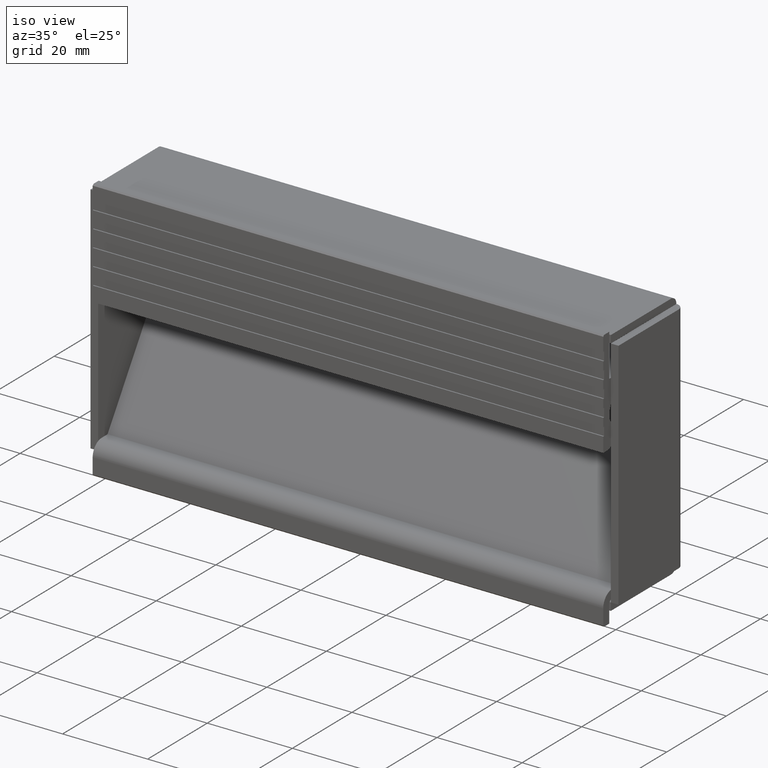
[diagram: clean part render]
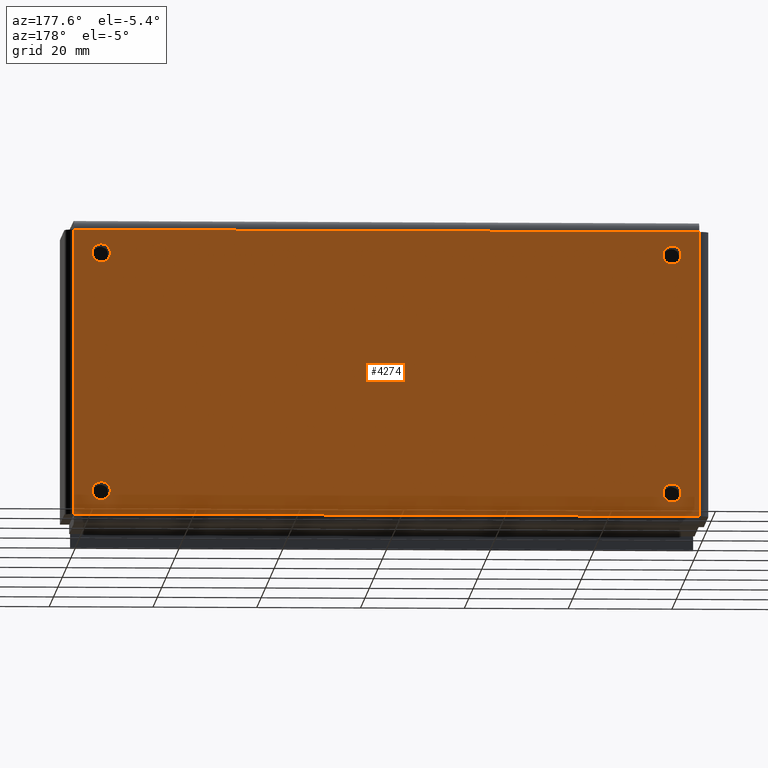
[diagram: tour spotlight — one face highlighted and labeled with its STEP entity id]
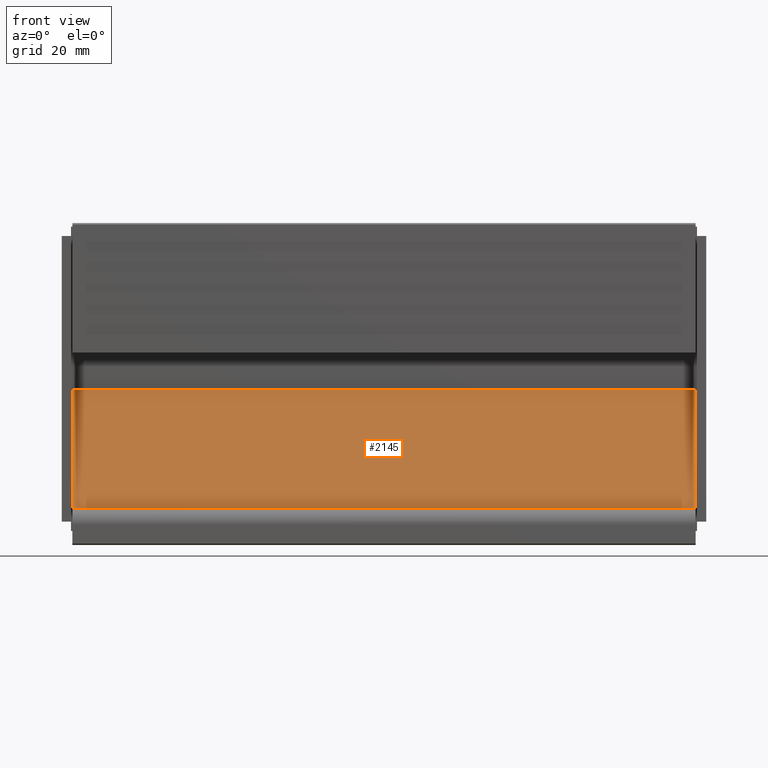
[diagram: tour spotlight — one face highlighted and labeled with its STEP entity id]
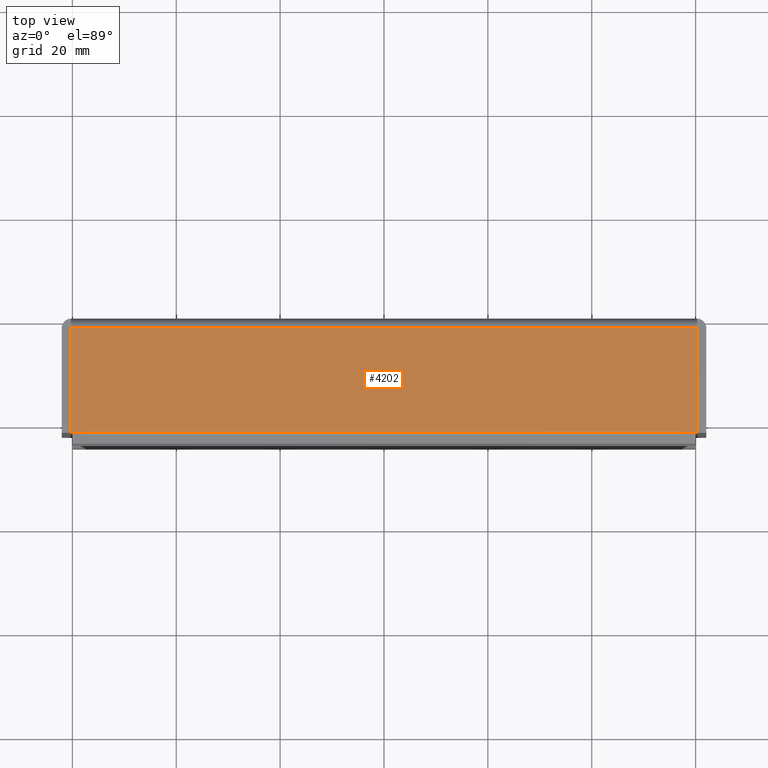
[diagram: tour spotlight — one face highlighted and labeled with its STEP entity id]
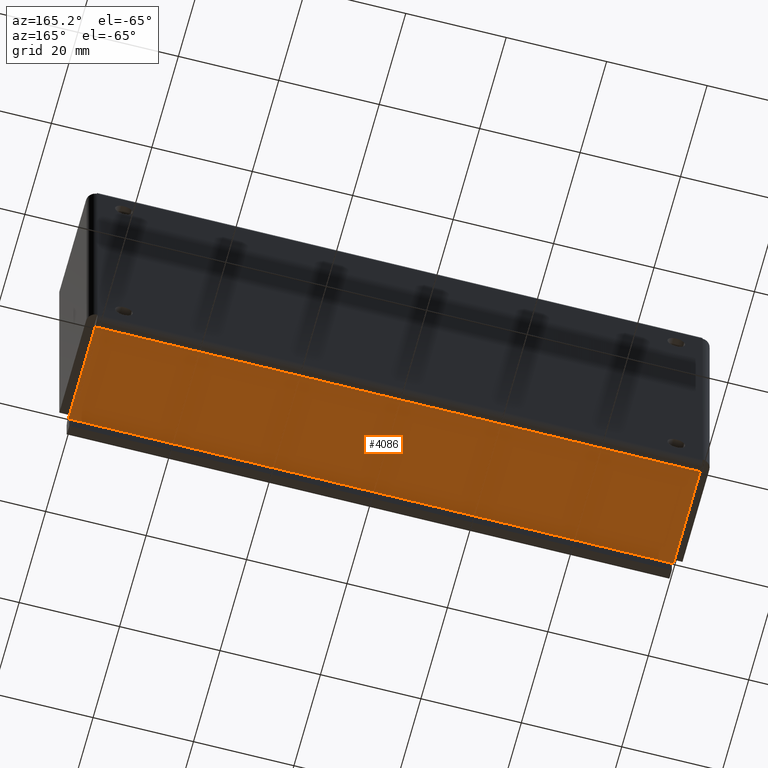
[diagram: tour spotlight — one face highlighted and labeled with its STEP entity id]
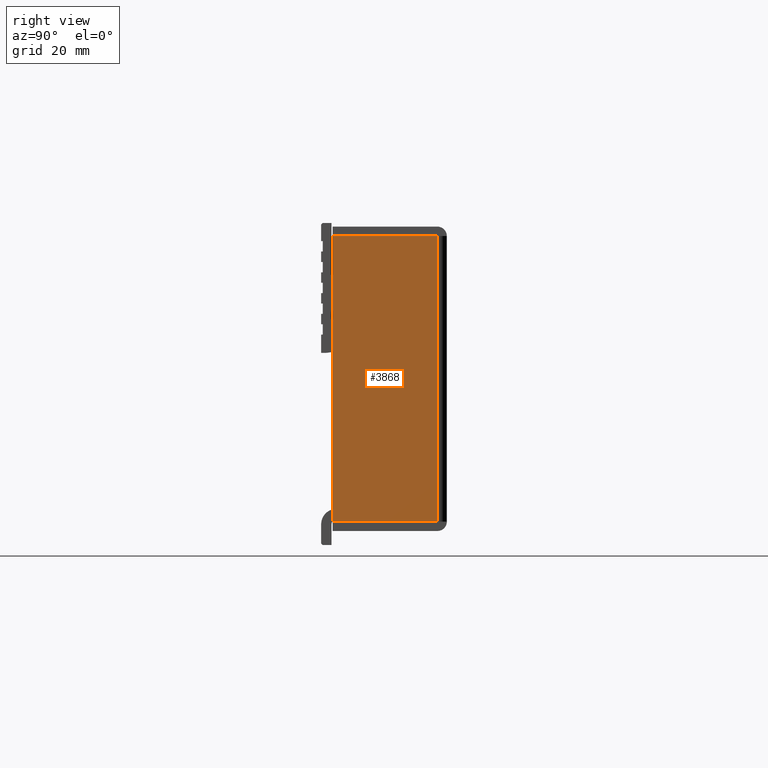
[diagram: tour spotlight — one face highlighted and labeled with its STEP entity id]
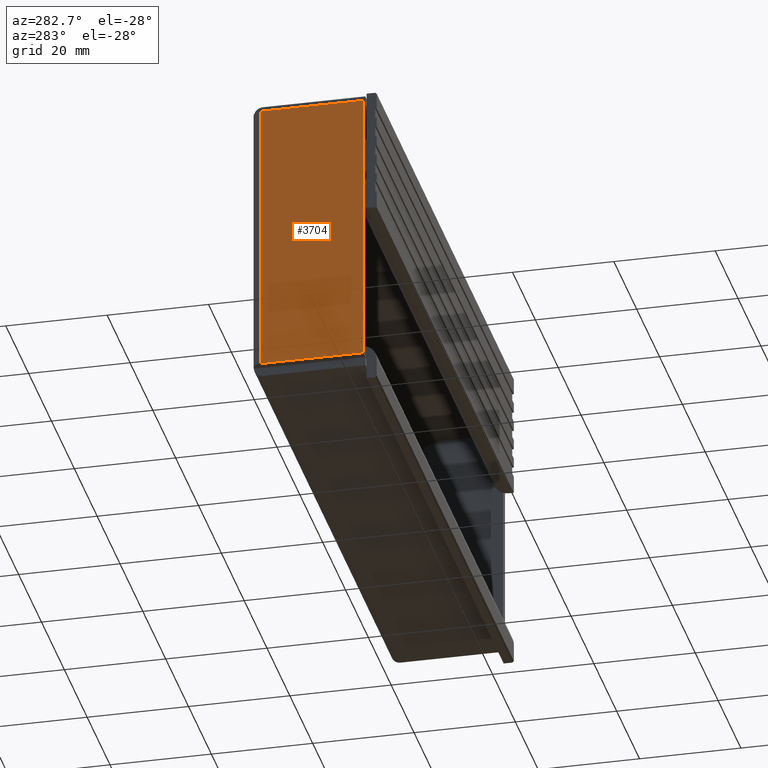
[diagram: tour spotlight — one face highlighted and labeled with its STEP entity id]
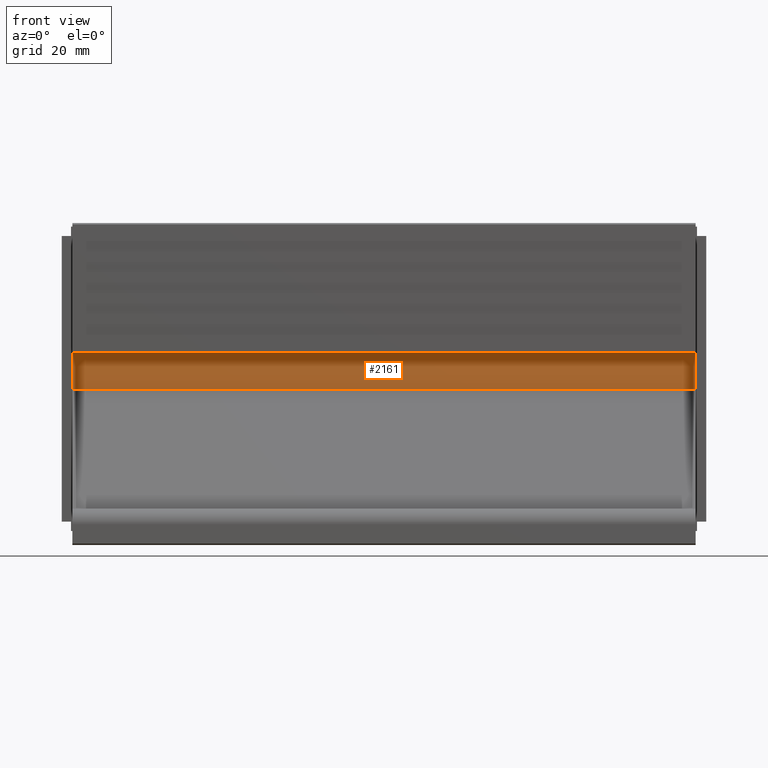
[diagram: tour spotlight — one face highlighted and labeled with its STEP entity id]
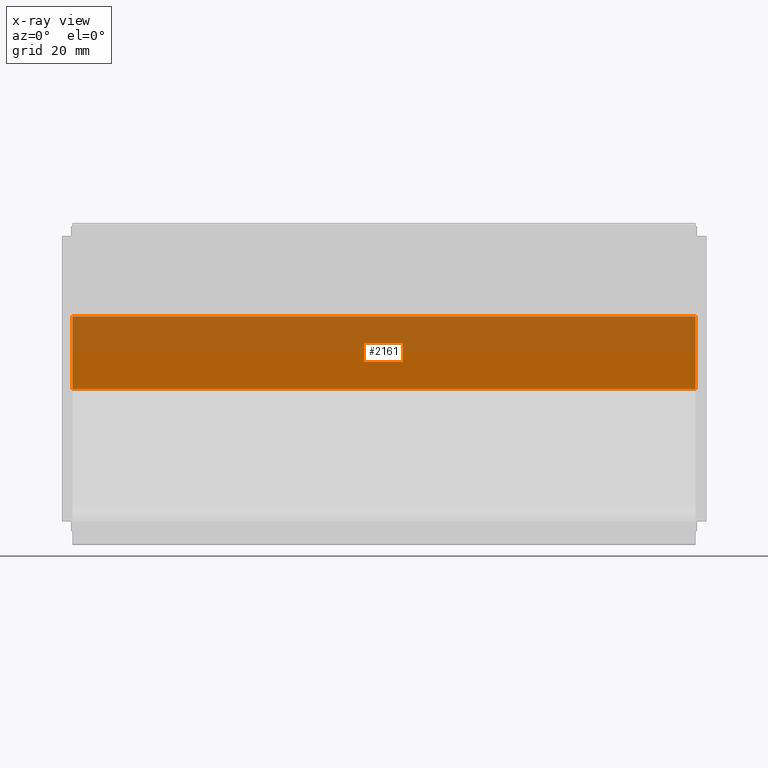
[diagram: x-ray of the same camera — body ghosted, this tour face saturated]
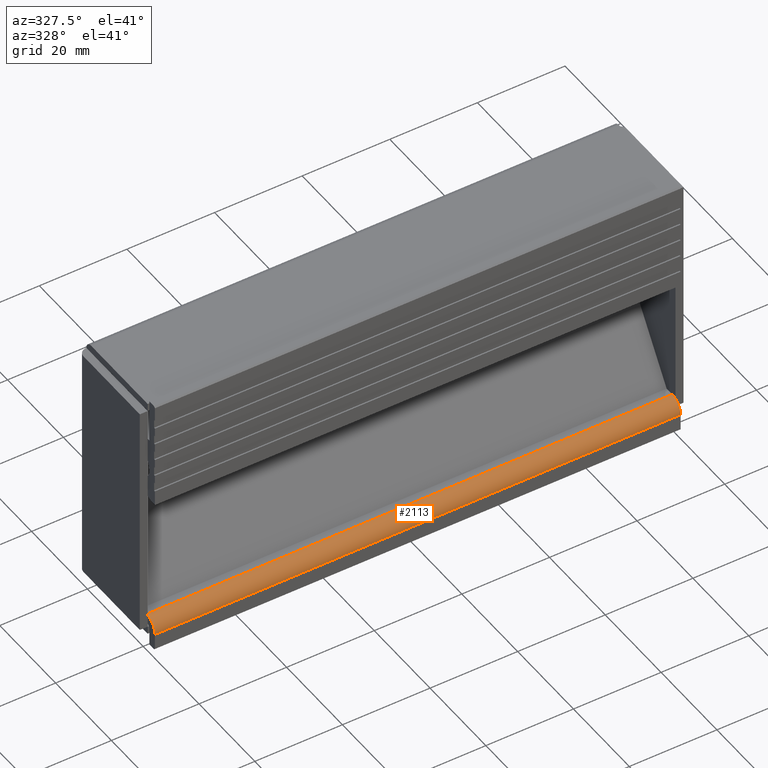
[diagram: tour spotlight — one face highlighted and labeled with its STEP entity id]
A machine part: a face-by-face anatomy tour. The part has 101 B-rep faces; the first image is the clean iso view, then the 8 largest visible faces are spotlighted one at a time (largest first), each with its STEP entity span.

Face 1 — auxiliary view, entity #4274. In plain terms, the highlighted face is a freeform B-spline surface patch.
Definition (entity closure, byte-faithful):
#2817=CARTESIAN_POINT('',(-55.0,0.0,24.750000000000000));
#2818=VERTEX_POINT('',#2817);
#2819=CARTESIAN_POINT('',(-56.744605333943852,1.387779E-017,23.137303418656231));
#2820=VERTEX_POINT('',#2819);
#2821=CARTESIAN_POINT('',(-55.0,0.0,24.750000000000000));
#2822=CARTESIAN_POINT('',(-56.617683358295153,0.0,24.750000000000004));
#2823=CARTESIAN_POINT('',(-56.744605333943845,1.387779E-017,23.137303418656227));
#2831=(BOUNDED_CURVE()B_SPLINE_CURVE(2,(#2821,#2822,#2823),.UNSPECIFIED.,.F.,.U.)B_SPLINE_CURVE_WITH_KNOTS((3,3),(0.0,0.236331300410209),.UNSPECIFIED.)CURVE()GEOMETRIC_REPRESENTATION_ITEM()RATIONAL_B_SPLINE_CURVE((1.0,0.723120658865939,0.969723355707354))REPRESENTATION_ITEM(''));
#2832=EDGE_CURVE('',#2818,#2820,#2831,.T.);
#2834=CARTESIAN_POINT('',(-53.255394666056162,1.387779E-017,22.862696581343780));
#2835=VERTEX_POINT('',#2834);
#2836=CARTESIAN_POINT('',(-53.255394666056148,1.387779E-017,22.862696581343776));
#2837=CARTESIAN_POINT('',(-53.250000000000000,0.0,22.931242311598830));
#2838=CARTESIAN_POINT('',(-53.250000000000000,0.0,23.0));
#2839=CARTESIAN_POINT('',(-53.249999999999993,0.0,24.750000000000000));
#2840=CARTESIAN_POINT('',(-55.0,0.0,24.750000000000000));
#2848=(BOUNDED_CURVE()B_SPLINE_CURVE(2,(#2836,#2837,#2838,#2839,#2840),.UNSPECIFIED.,.F.,.U.)B_SPLINE_CURVE_WITH_KNOTS((3,2,3),(0.736331300410209,0.750000000000000,1.0),.UNSPECIFIED.)CURVE()GEOMETRIC_REPRESENTATION_ITEM()RATIONAL_B_SPLINE_CURVE((0.969723355707355,0.983986122320608,1.0,0.707106781186547,1.0))REPRESENTATION_ITEM(''));
#2849=EDGE_CURVE('',#2835,#2818,#2848,.T.);
#2916=CARTESIAN_POINT('',(-55.0,0.0,21.250000000000000));
#2917=VERTEX_POINT('',#2916);
#2918=CARTESIAN_POINT('',(-56.744605333943845,1.387779E-017,23.137303418656227));
#2919=CARTESIAN_POINT('',(-56.750000000000000,0.0,23.068757688401167));
#2920=CARTESIAN_POINT('',(-56.750000000000000,0.0,23.0));
#2921=CARTESIAN_POINT('',(-56.750000000000000,0.0,21.249999999999996));
#2922=CARTESIAN_POINT('',(-55.0,0.0,21.250000000000000));
#2930=(BOUNDED_CURVE()B_SPLINE_CURVE(2,(#2918,#2919,#2920,#2921,#2922),.UNSPECIFIED.,.F.,.U.)B_SPLINE_CURVE_WITH_KNOTS((3,2,3),(0.236331300410209,0.250000000000000,0.500000000000000),.UNSPECIFIED.)CURVE()GEOMETRIC_REPRESENTATION_ITEM()RATIONAL_B_SPLINE_CURVE((0.969723355707354,0.983986122320608,1.0,0.707106781186547,1.0))REPRESENTATION_ITEM(''));
#2931=EDGE_CURVE('',#2820,#2917,#2930,.T.);
#2965=CARTESIAN_POINT('',(-55.0,0.0,21.250000000000000));
#2966=CARTESIAN_POINT('',(-53.382316641704861,0.0,21.249999999999993));
#2967=CARTESIAN_POINT('',(-53.255394666056155,1.387779E-017,22.862696581343776));
#2975=(BOUNDED_CURVE()B_SPLINE_CURVE(2,(#2965,#2966,#2967),.UNSPECIFIED.,.F.,.U.)B_SPLINE_CURVE_WITH_KNOTS((3,3),(0.500000000000000,0.736331300410209),.UNSPECIFIED.)CURVE()GEOMETRIC_REPRESENTATION_ITEM()RATIONAL_B_SPLINE_CURVE((1.0,0.723120658865940,0.969723355707353))REPRESENTATION_ITEM(''));
#2976=EDGE_CURVE('',#2917,#2835,#2975,.T.);
#2999=CARTESIAN_POINT('',(55.0,0.0,24.750000000000000));
#3000=VERTEX_POINT('',#2999);
#3001=CARTESIAN_POINT('',(53.255394666056162,1.387779E-017,23.137303418656231));
#3002=VERTEX_POINT('',#3001);
#3003=CARTESIAN_POINT('',(55.0,0.0,24.750000000000000));
#3004=CARTESIAN_POINT('',(53.382316641704847,0.0,24.750000000000004));
#3005=CARTESIAN_POINT('',(53.255394666056155,1.387779E-017,23.137303418656227));
#3013=(BOUNDED_CURVE()B_SPLINE_CURVE(2,(#3003,#3004,#3005),.UNSPECIFIED.,.F.,.U.)B_SPLINE_CURVE_WITH_KNOTS((3,3),(0.0,0.236331300410209),.UNSPECIFIED.)CURVE()GEOMETRIC_REPRESENTATION_ITEM()RATIONAL_B_SPLINE_CURVE((1.0,0.723120658865939,0.969723355707354))REPRESENTATION_ITEM(''));
#3014=EDGE_CURVE('',#3000,#3002,#3013,.T.);
#3016=CARTESIAN_POINT('',(56.744605333943852,1.387779E-017,22.862696581343780));
#3017=VERTEX_POINT('',#3016);
#3018=CARTESIAN_POINT('',(56.744605333943845,1.387779E-017,22.862696581343780));
#3019=CARTESIAN_POINT('',(56.750000000000000,0.0,22.931242311598830));
#3020=CARTESIAN_POINT('',(56.750000000000000,0.0,23.0));
#3021=CARTESIAN_POINT('',(56.750000000000000,0.0,24.750000000000000));
#3022=CARTESIAN_POINT('',(55.0,0.0,24.750000000000000));
#3030=(BOUNDED_CURVE()B_SPLINE_CURVE(2,(#3018,#3019,#3020,#3021,#3022),.UNSPECIFIED.,.F.,.U.)B_SPLINE_CURVE_WITH_KNOTS((3,2,3),(0.736331300410209,0.750000000000000,1.0),.UNSPECIFIED.)CURVE()GEOMETRIC_REPRESENTATION_ITEM()RATIONAL_B_SPLINE_CURVE((0.969723355707354,0.983986122320608,1.0,0.707106781186547,1.0))REPRESENTATION_ITEM(''));
#3031=EDGE_CURVE('',#3017,#3000,#3030,.T.);
#3098=CARTESIAN_POINT('',(55.0,0.0,21.250000000000000));
#3099=VERTEX_POINT('',#3098);
#3100=CARTESIAN_POINT('',(53.255394666056155,1.387779E-017,23.137303418656224));
#3101=CARTESIAN_POINT('',(53.250000000000007,0.0,23.068757688401170));
#3102=CARTESIAN_POINT('',(53.250000000000000,0.0,23.0));
#3103=CARTESIAN_POINT('',(53.249999999999993,0.0,21.249999999999996));
#3104=CARTESIAN_POINT('',(55.0,0.0,21.250000000000000));
#3112=(BOUNDED_CURVE()B_SPLINE_CURVE(2,(#3100,#3101,#3102,#3103,#3104),.UNSPECIFIED.,.F.,.U.)B_SPLINE_CURVE_WITH_KNOTS((3,2,3),(0.236331300410209,0.250000000000000,0.500000000000000),.UNSPECIFIED.)CURVE()GEOMETRIC_REPRESENTATION_ITEM()RATIONAL_B_SPLINE_CURVE((0.969723355707354,0.983986122320608,1.0,0.707106781186547,1.0))REPRESENTATION_ITEM(''));
#3113=EDGE_CURVE('',#3002,#3099,#3112,.T.);
#3147=CARTESIAN_POINT('',(55.0,0.0,21.250000000000000));
#3148=CARTESIAN_POINT('',(56.617683358295153,0.0,21.249999999999993));
#3149=CARTESIAN_POINT('',(56.744605333943845,1.387779E-017,22.862696581343776));
#3157=(BOUNDED_CURVE()B_SPLINE_CURVE(2,(#3147,#3148,#3149),.UNSPECIFIED.,.F.,.U.)B_SPLINE_CURVE_WITH_KNOTS((3,3),(0.500000000000000,0.736331300410209),.UNSPECIFIED.)CURVE()GEOMETRIC_REPRESENTATION_ITEM()RATIONAL_B_SPLINE_CURVE((1.0,0.723120658865940,0.969723355707353))REPRESENTATION_ITEM(''));
#3158=EDGE_CURVE('',#3099,#3017,#3157,.T.);
#3181=CARTESIAN_POINT('',(55.0,0.0,-21.250000000000000));
#3182=VERTEX_POINT('',#3181);
#3183=CARTESIAN_POINT('',(53.255394666056148,-8.326673E-017,-22.862696581343780));
#3184=VERTEX_POINT('',#3183);
#3185=CARTESIAN_POINT('',(55.0,0.0,-21.250000000000000));
#3186=CARTESIAN_POINT('',(53.382316641704847,0.0,-21.249999999999996));
#3187=CARTESIAN_POINT('',(53.255394666056148,-8.326673E-017,-22.862696581343773));
#3195=(BOUNDED_CURVE()B_SPLINE_CURVE(2,(#3185,#3186,#3187),.UNSPECIFIED.,.F.,.U.)B_SPLINE_CURVE_WITH_KNOTS((3,3),(0.0,0.236331300410210),.UNSPECIFIED.)CURVE()GEOMETRIC_REPRESENTATION_ITEM()RATIONAL_B_SPLINE_CURVE((1.0,0.723120658865939,0.969723355707355))REPRESENTATION_ITEM(''));
#3196=EDGE_CURVE('',#3182,#3184,#3195,.T.);
#3198=CARTESIAN_POINT('',(56.744605333943852,1.387779E-017,-23.137303418656220));
#3199=VERTEX_POINT('',#3198);
#3200=CARTESIAN_POINT('',(56.744605333943838,1.387779E-017,-23.137303418656224));
#3201=CARTESIAN_POINT('',(56.750000000000007,0.0,-23.068757688401178));
#3202=CARTESIAN_POINT('',(56.750000000000000,0.0,-23.0));
#3203=CARTESIAN_POINT('',(56.750000000000000,0.0,-21.249999999999996));
#3204=CARTESIAN_POINT('',(55.0,0.0,-21.250000000000000));
#3212=(BOUNDED_CURVE()B_SPLINE_CURVE(2,(#3200,#3201,#3202,#3203,#3204),.UNSPECIFIED.,.F.,.U.)B_SPLINE_CURVE_WITH_KNOTS((3,2,3),(0.736331300410209,0.750000000000000,1.0),.UNSPECIFIED.)CURVE()GEOMETRIC_REPRESENTATION_ITEM()RATIONAL_B_SPLINE_CURVE((0.969723355707355,0.983986122320608,1.0,0.707106781186547,1.0))REPRESENTATION_ITEM(''));
#3213=EDGE_CURVE('',#3199,#3182,#3212,.T.);
#3280=CARTESIAN_POINT('',(55.0,0.0,-24.750000000000000));
#3281=VERTEX_POINT('',#3280);
#3282=CARTESIAN_POINT('',(53.255394666056155,-8.326673E-017,-22.862696581343776));
#3283=CARTESIAN_POINT('',(53.250000000000000,0.0,-22.931242311598830));
#3284=CARTESIAN_POINT('',(53.250000000000000,0.0,-23.0));
#3285=CARTESIAN_POINT('',(53.249999999999993,0.0,-24.750000000000000));
#3286=CARTESIAN_POINT('',(55.0,0.0,-24.750000000000000));
#3294=(BOUNDED_CURVE()B_SPLINE_CURVE(2,(#3282,#3283,#3284,#3285,#3286),.UNSPECIFIED.,.F.,.U.)B_SPLINE_CURVE_WITH_KNOTS((3,2,3),(0.236331300410209,0.250000000000000,0.500000000000000),.UNSPECIFIED.)CURVE()GEOMETRIC_REPRESENTATION_ITEM()RATIONAL_B_SPLINE_CURVE((0.969723355707355,0.983986122320608,1.0,0.707106781186547,1.0))REPRESENTATION_ITEM(''));
#3295=EDGE_CURVE('',#3184,#3281,#3294,.T.);
#3329=CARTESIAN_POINT('',(55.0,0.0,-24.750000000000000));
#3330=CARTESIAN_POINT('',(56.617683358295153,0.0,-24.750000000000004));
#3331=CARTESIAN_POINT('',(56.744605333943845,1.387779E-017,-23.137303418656224));
#3339=(BOUNDED_CURVE()B_SPLINE_CURVE(2,(#3329,#3330,#3331),.UNSPECIFIED.,.F.,.U.)B_SPLINE_CURVE_WITH_KNOTS((3,3),(0.500000000000000,0.736331300410209),.UNSPECIFIED.)CURVE()GEOMETRIC_REPRESENTATION_ITEM()RATIONAL_B_SPLINE_CURVE((1.0,0.723120658865940,0.969723355707353))REPRESENTATION_ITEM(''));
#3340=EDGE_CURVE('',#3281,#3199,#3339,.T.);
#3363=CARTESIAN_POINT('',(-55.0,0.0,-21.250000000000000));
#3364=VERTEX_POINT('',#3363);
#3365=CARTESIAN_POINT('',(-56.744605333943838,1.387779E-017,-22.862696581343780));
#3366=VERTEX_POINT('',#3365);
#3367=CARTESIAN_POINT('',(-55.0,0.0,-21.250000000000000));
#3368=CARTESIAN_POINT('',(-56.617683358295160,0.0,-21.249999999999996));
#3369=CARTESIAN_POINT('',(-56.744605333943838,1.387779E-017,-22.862696581343773));
#3377=(BOUNDED_CURVE()B_SPLINE_CURVE(2,(#3367,#3368,#3369),.UNSPECIFIED.,.F.,.U.)B_SPLINE_CURVE_WITH_KNOTS((3,3),(0.0,0.236331300410210),.UNSPECIFIED.)CURVE()GEOMETRIC_REPRESENTATION_ITEM()RATIONAL_B_SPLINE_CURVE((1.0,0.723120658865939,0.969723355707355))REPRESENTATION_ITEM(''));
#3378=EDGE_CURVE('',#3364,#3366,#3377,.T.);
#3380=CARTESIAN_POINT('',(-53.255394666056162,1.387779E-017,-23.137303418656231));
#3381=VERTEX_POINT('',#3380);
#3382=CARTESIAN_POINT('',(-53.255394666056155,1.387779E-017,-23.137303418656224));
#3383=CARTESIAN_POINT('',(-53.250000000000007,0.0,-23.068757688401181));
#3384=CARTESIAN_POINT('',(-53.250000000000000,0.0,-23.0));
#3385=CARTESIAN_POINT('',(-53.249999999999993,0.0,-21.249999999999996));
#3386=CARTESIAN_POINT('',(-55.0,0.0,-21.250000000000000));
#3394=(BOUNDED_CURVE()B_SPLINE_CURVE(2,(#3382,#3383,#3384,#3385,#3386),.UNSPECIFIED.,.F.,.U.)B_SPLINE_CURVE_WITH_KNOTS((3,2,3),(0.736331300410209,0.750000000000000,1.0),.UNSPECIFIED.)CURVE()GEOMETRIC_REPRESENTATION_ITEM()RATIONAL_B_SPLINE_CURVE((0.969723355707354,0.983986122320608,1.0,0.707106781186547,1.0))REPRESENTATION_ITEM(''));
#3395=EDGE_CURVE('',#3381,#3364,#3394,.T.);
#3462=CARTESIAN_POINT('',(-55.0,0.0,-24.750000000000000));
#3463=VERTEX_POINT('',#3462);
#3464=CARTESIAN_POINT('',(-56.744605333943845,1.387779E-017,-22.862696581343776));
#3465=CARTESIAN_POINT('',(-56.749999999999993,0.0,-22.931242311598830));
#3466=CARTESIAN_POINT('',(-56.750000000000000,0.0,-23.0));
#3467=CARTESIAN_POINT('',(-56.750000000000000,0.0,-24.750000000000000));
#3468=CARTESIAN_POINT('',(-55.0,0.0,-24.750000000000000));
#3476=(BOUNDED_CURVE()B_SPLINE_CURVE(2,(#3464,#3465,#3466,#3467,#3468),.UNSPECIFIED.,.F.,.U.)B_SPLINE_CURVE_WITH_KNOTS((3,2,3),(0.236331300410209,0.250000000000000,0.500000000000000),.UNSPECIFIED.)CURVE()GEOMETRIC_REPRESENTATION_ITEM()RATIONAL_B_SPLINE_CURVE((0.969723355707355,0.983986122320608,1.0,0.707106781186547,1.0))REPRESENTATION_ITEM(''));
#3477=EDGE_CURVE('',#3366,#3463,#3476,.T.);
#3511=CARTESIAN_POINT('',(-55.0,0.0,-24.750000000000000));
#3512=CARTESIAN_POINT('',(-53.382316641704861,0.0,-24.750000000000004));
#3513=CARTESIAN_POINT('',(-53.255394666056155,1.387779E-017,-23.137303418656224));
#3521=(BOUNDED_CURVE()B_SPLINE_CURVE(2,(#3511,#3512,#3513),.UNSPECIFIED.,.F.,.U.)B_SPLINE_CURVE_WITH_KNOTS((3,3),(0.500000000000000,0.736331300410209),.UNSPECIFIED.)CURVE()GEOMETRIC_REPRESENTATION_ITEM()RATIONAL_B_SPLINE_CURVE((1.0,0.723120658865940,0.969723355707353))REPRESENTATION_ITEM(''));
#3522=EDGE_CURVE('',#3463,#3381,#3521,.T.);
#3541=CARTESIAN_POINT('',(60.250000000000000,0.0,-27.500000000000000));
#3542=VERTEX_POINT('',#3541);
#3558=CARTESIAN_POINT('',(60.250000000000000,0.0,27.500000000000000));
#3559=VERTEX_POINT('',#3558);
#3560=CARTESIAN_POINT('',(60.250000000000000,0.0,27.500000000000000));
#3561=CARTESIAN_POINT('',(60.250000000000000,0.0,-27.500000000000000));
#3562=QUASI_UNIFORM_CURVE('',1,(#3560,#3561),.UNSPECIFIED.,.F.,.U.);
#3563=EDGE_CURVE('',#3559,#3542,#3562,.T.);
#3602=CARTESIAN_POINT('',(-60.250000000000000,0.0,27.500000000000000));
#3603=VERTEX_POINT('',#3602);
#3619=CARTESIAN_POINT('',(-60.250000000000000,1.709743E-014,-27.500000000000000));
#3620=VERTEX_POINT('',#3619);
#3621=CARTESIAN_POINT('',(-60.250000000000000,1.709743E-014,-27.500000000000000));
#3622=CARTESIAN_POINT('',(-60.250000000000000,0.0,27.500000000000000));
#3623=QUASI_UNIFORM_CURVE('',1,(#3621,#3622),.UNSPECIFIED.,.F.,.U.);
#3624=EDGE_CURVE('',#3620,#3603,#3623,.T.);
#4034=CARTESIAN_POINT('',(60.250000000000000,0.0,27.500000000000000));
#4035=CARTESIAN_POINT('',(-60.250000000000000,0.0,27.500000000000000));
#4036=QUASI_UNIFORM_CURVE('',1,(#4034,#4035),.UNSPECIFIED.,.F.,.U.);
#4037=EDGE_CURVE('',#3559,#3603,#4036,.T.);
#4057=CARTESIAN_POINT('',(60.250000000000000,0.0,-27.500000000000000));
#4058=CARTESIAN_POINT('',(-60.250000000000000,1.709743E-014,-27.500000000000000));
#4059=QUASI_UNIFORM_CURVE('',1,(#4057,#4058),.UNSPECIFIED.,.F.,.U.);
#4060=EDGE_CURVE('',#3542,#3620,#4059,.T.);
#4239=CARTESIAN_POINT('',(-66.268974766447613,0.0,30.247249893399331));
#4240=CARTESIAN_POINT('',(-66.268974766447613,0.0,-30.247251368614290));
#4241=CARTESIAN_POINT('',(66.268977998509484,0.0,30.247249893399331));
#4242=CARTESIAN_POINT('',(66.268977998509484,0.0,-30.247251368614290));
#4243=B_SPLINE_SURFACE_WITH_KNOTS('',1,1,((#4239,#4241),(#4240,#4242)),.UNSPECIFIED.,.F.,.F.,.U.,(2,2),(2,2),(0.0,60.494501262013607),(0.0,132.537952764957110),.UNSPECIFIED.);
#4244=ORIENTED_EDGE('',*,*,#4060,.T.);
#4245=ORIENTED_EDGE('',*,*,#3624,.T.);
#4246=ORIENTED_EDGE('',*,*,#4037,.F.);
#4247=ORIENTED_EDGE('',*,*,#3563,.T.);
#4248=EDGE_LOOP('',(#4244,#4245,#4246,#4247));
#4249=FACE_OUTER_BOUND('',#4248,.T.);
#4250=ORIENTED_EDGE('',*,*,#3522,.T.);
#4251=ORIENTED_EDGE('',*,*,#3395,.T.);
#4252=ORIENTED_EDGE('',*,*,#3378,.T.);
#4253=ORIENTED_EDGE('',*,*,#3477,.T.);
#4254=EDGE_LOOP('',(#4250,#4251,#4252,#4253));
#4255=FACE_BOUND('',#4254,.T.);
#4256=ORIENTED_EDGE('',*,*,#3340,.T.);
#4257=ORIENTED_EDGE('',*,*,#3213,.T.);
#4258=ORIENTED_EDGE('',*,*,#3196,.T.);
#4259=ORIENTED_EDGE('',*,*,#3295,.T.);
#4260=EDGE_LOOP('',(#4256,#4257,#4258,#4259));
#4261=FACE_BOUND('',#4260,.T.);
#4262=ORIENTED_EDGE('',*,*,#3158,.T.);
#4263=ORIENTED_EDGE('',*,*,#3031,.T.);
#4264=ORIENTED_EDGE('',*,*,#3014,.T.);
#4265=ORIENTED_EDGE('',*,*,#3113,.T.);
#4266=EDGE_LOOP('',(#4262,#4263,#4264,#4265));
#4267=FACE_BOUND('',#4266,.T.);
#4268=ORIENTED_EDGE('',*,*,#2976,.T.);
#4269=ORIENTED_EDGE('',*,*,#2849,.T.);
#4270=ORIENTED_EDGE('',*,*,#2832,.T.);
#4271=ORIENTED_EDGE('',*,*,#2931,.T.);
#4272=EDGE_LOOP('',(#4268,#4269,#4270,#4271));
#4273=FACE_BOUND('',#4272,.T.);
#4274=ADVANCED_FACE('',(#4249,#4255,#4261,#4267,#4273),#4243,.F.);

Face 2 — front view, entity #2145. In plain terms, the highlighted face is a freeform B-spline surface patch.
Definition (entity closure, byte-faithful):
#1226=CARTESIAN_POINT('',(60.0,18.0,30.0));
#1227=VERTEX_POINT('',#1226);
#1233=CARTESIAN_POINT('',(60.0,3.0,7.0));
#1234=VERTEX_POINT('',#1233);
#1235=CARTESIAN_POINT('',(60.0,18.0,30.0));
#1236=CARTESIAN_POINT('',(60.0,3.0,7.0));
#1237=QUASI_UNIFORM_CURVE('',1,(#1235,#1236),.UNSPECIFIED.,.F.,.U.);
#1238=EDGE_CURVE('',#1227,#1234,#1237,.T.);
#1453=CARTESIAN_POINT('',(-60.0,3.0,7.0));
#1454=VERTEX_POINT('',#1453);
#1460=CARTESIAN_POINT('',(-60.0,18.0,30.0));
#1461=VERTEX_POINT('',#1460);
#1462=CARTESIAN_POINT('',(-60.0,18.0,30.0));
#1463=CARTESIAN_POINT('',(-60.0,3.0,7.0));
#1464=QUASI_UNIFORM_CURVE('',1,(#1462,#1463),.UNSPECIFIED.,.F.,.U.);
#1465=EDGE_CURVE('',#1461,#1454,#1464,.T.);
#2120=CARTESIAN_POINT('',(-60.0,3.0,7.0));
#2121=CARTESIAN_POINT('',(60.0,3.0,7.0));
#2122=QUASI_UNIFORM_CURVE('',1,(#2120,#2121),.UNSPECIFIED.,.F.,.U.);
#2123=EDGE_CURVE('',#1454,#1234,#2122,.T.);
#2130=CARTESIAN_POINT('',(-65.993999767416710,18.749249970927089,31.148849955421539));
#2131=CARTESIAN_POINT('',(-65.993999767416710,2.250749626741562,5.851149427670386));
#2132=CARTESIAN_POINT('',(65.994002986067542,18.749249970927089,31.148849955421539));
#2133=CARTESIAN_POINT('',(65.994002986067542,2.250749626741562,5.851149427670386));
#2134=B_SPLINE_SURFACE_WITH_KNOTS('',1,1,((#2130,#2132),(#2131,#2133)),.UNSPECIFIED.,.F.,.F.,.U.,(2,2),(2,2),(0.0,30.202221203065029),(0.0,131.988002753484210),.UNSPECIFIED.);
#2135=ORIENTED_EDGE('',*,*,#1238,.F.);
#2136=CARTESIAN_POINT('',(-60.0,18.0,30.0));
#2137=CARTESIAN_POINT('',(60.0,18.0,30.0));
#2138=QUASI_UNIFORM_CURVE('',1,(#2136,#2137),.UNSPECIFIED.,.F.,.U.);
#2139=EDGE_CURVE('',#1461,#1227,#2138,.T.);
#2140=ORIENTED_EDGE('',*,*,#2139,.F.);
#2141=ORIENTED_EDGE('',*,*,#1465,.T.);
#2142=ORIENTED_EDGE('',*,*,#2123,.T.);
#2143=EDGE_LOOP('',(#2135,#2140,#2141,#2142));
#2144=FACE_OUTER_BOUND('',#2143,.T.);
#2145=ADVANCED_FACE('',(#2144),#2134,.T.);

Face 3 — top view, entity #4202. In plain terms, the highlighted face is a freeform B-spline surface patch.
Definition (entity closure, byte-faithful):
#3999=CARTESIAN_POINT('',(-60.250000000000000,-1.800000000000000,29.300000000000001));
#4000=VERTEX_POINT('',#3999);
#4014=CARTESIAN_POINT('',(60.250000000000000,-1.800000000000000,29.300000000000001));
#4015=VERTEX_POINT('',#4014);
#4016=CARTESIAN_POINT('',(60.250000000000000,-1.800000000000000,29.300000000000001));
#4017=CARTESIAN_POINT('',(-60.250000000000000,-1.800000000000000,29.300000000000001));
#4018=QUASI_UNIFORM_CURVE('',1,(#4016,#4017),.UNSPECIFIED.,.F.,.U.);
#4019=EDGE_CURVE('',#4015,#4000,#4018,.T.);
#4160=CARTESIAN_POINT('',(-60.250000000000000,-22.0,29.300000000000001));
#4161=VERTEX_POINT('',#4160);
#4168=CARTESIAN_POINT('',(60.250000000000000,-22.0,29.300000000000001));
#4169=VERTEX_POINT('',#4168);
#4175=CARTESIAN_POINT('',(60.250000000000000,-22.0,29.300000000000001));
#4176=CARTESIAN_POINT('',(-60.250000000000000,-22.0,29.300000000000001));
#4177=QUASI_UNIFORM_CURVE('',1,(#4175,#4176),.UNSPECIFIED.,.F.,.U.);
#4178=EDGE_CURVE('',#4169,#4161,#4177,.T.);
#4183=CARTESIAN_POINT('',(66.268974766447613,-23.008989960848488,29.300000000000001));
#4184=CARTESIAN_POINT('',(-66.268977998509484,-23.008989960848488,29.300000000000001));
#4185=CARTESIAN_POINT('',(66.268974766447613,-0.791009497345300,29.300000000000001));
#4186=CARTESIAN_POINT('',(-66.268977998509484,-0.791009497345300,29.300000000000001));
#4187=B_SPLINE_SURFACE_WITH_KNOTS('',1,1,((#4183,#4185),(#4184,#4186)),.UNSPECIFIED.,.F.,.F.,.U.,(2,2),(2,2),(0.0,132.537952764957110),(0.0,22.217980463503189),.UNSPECIFIED.);
#4188=CARTESIAN_POINT('',(-60.250000000000000,-1.800000000000000,29.300000000000001));
#4189=CARTESIAN_POINT('',(-60.250000000000000,-22.0,29.300000000000001));
#4190=QUASI_UNIFORM_CURVE('',1,(#4188,#4189),.UNSPECIFIED.,.F.,.U.);
#4191=EDGE_CURVE('',#4000,#4161,#4190,.T.);
#4192=ORIENTED_EDGE('',*,*,#4191,.T.);
#4193=ORIENTED_EDGE('',*,*,#4178,.F.);
#4194=CARTESIAN_POINT('',(60.250000000000000,-1.800000000000000,29.300000000000001));
#4195=CARTESIAN_POINT('',(60.250000000000000,-22.0,29.300000000000001));
#4196=QUASI_UNIFORM_CURVE('',1,(#4194,#4195),.UNSPECIFIED.,.F.,.U.);
#4197=EDGE_CURVE('',#4015,#4169,#4196,.T.);
#4198=ORIENTED_EDGE('',*,*,#4197,.F.);
#4199=ORIENTED_EDGE('',*,*,#4019,.T.);
#4200=EDGE_LOOP('',(#4192,#4193,#4198,#4199));
#4201=FACE_OUTER_BOUND('',#4200,.T.);
#4202=ADVANCED_FACE('',(#4201),#4187,.F.);

Face 4 — auxiliary view, entity #4086. In plain terms, the highlighted face is a freeform B-spline surface patch.
Definition (entity closure, byte-faithful):
#3898=CARTESIAN_POINT('',(-60.250000000000000,-1.800000000000000,-29.300000000000001));
#3899=VERTEX_POINT('',#3898);
#3913=CARTESIAN_POINT('',(-60.250000000000000,-22.0,-29.300000000000001));
#3914=VERTEX_POINT('',#3913);
#3915=CARTESIAN_POINT('',(-60.250000000000000,-22.0,-29.300000000000001));
#3916=CARTESIAN_POINT('',(-60.250000000000000,-1.800000000000000,-29.300000000000001));
#3917=QUASI_UNIFORM_CURVE('',1,(#3915,#3916),.UNSPECIFIED.,.F.,.U.);
#3918=EDGE_CURVE('',#3914,#3899,#3917,.T.);
#3955=CARTESIAN_POINT('',(60.250000000000000,-22.0,-29.300000000000001));
#3956=VERTEX_POINT('',#3955);
#3962=CARTESIAN_POINT('',(60.250000000000000,-1.800000000000000,-29.300000000000001));
#3963=VERTEX_POINT('',#3962);
#3964=CARTESIAN_POINT('',(60.250000000000000,-22.0,-29.300000000000001));
#3965=CARTESIAN_POINT('',(60.250000000000000,-1.800000000000000,-29.300000000000001));
#3966=QUASI_UNIFORM_CURVE('',1,(#3964,#3965),.UNSPECIFIED.,.F.,.U.);
#3967=EDGE_CURVE('',#3956,#3963,#3966,.T.);
#4063=CARTESIAN_POINT('',(60.250000000000000,-1.800000000000000,-29.300000000000001));
#4064=CARTESIAN_POINT('',(-60.250000000000000,-1.800000000000000,-29.300000000000001));
#4065=QUASI_UNIFORM_CURVE('',1,(#4063,#4064),.UNSPECIFIED.,.F.,.U.);
#4066=EDGE_CURVE('',#3963,#3899,#4065,.T.);
#4071=CARTESIAN_POINT('',(-66.268974766447599,-0.791009849528374,-29.300000000000001));
#4072=CARTESIAN_POINT('',(-66.268974766447599,-23.008990511675780,-29.300000000000001));
#4073=CARTESIAN_POINT('',(66.268977998509470,-0.791009849528374,-29.300000000000001));
#4074=CARTESIAN_POINT('',(66.268977998509470,-23.008990511675780,-29.300000000000001));
#4075=B_SPLINE_SURFACE_WITH_KNOTS('',1,1,((#4071,#4073),(#4072,#4074)),.UNSPECIFIED.,.F.,.F.,.U.,(2,2),(2,2),(0.0,22.217980662147401),(0.0,132.537952764957110),.UNSPECIFIED.);
#4076=ORIENTED_EDGE('',*,*,#3918,.T.);
#4077=ORIENTED_EDGE('',*,*,#4066,.F.);
#4078=ORIENTED_EDGE('',*,*,#3967,.F.);
#4079=CARTESIAN_POINT('',(60.250000000000000,-22.0,-29.300000000000001));
#4080=CARTESIAN_POINT('',(-60.250000000000000,-22.0,-29.300000000000001));
#4081=QUASI_UNIFORM_CURVE('',1,(#4079,#4080),.UNSPECIFIED.,.F.,.U.);
#4082=EDGE_CURVE('',#3956,#3914,#4081,.T.);
#4083=ORIENTED_EDGE('',*,*,#4082,.T.);
#4084=EDGE_LOOP('',(#4076,#4077,#4078,#4083));
#4085=FACE_OUTER_BOUND('',#4084,.T.);
#4086=ADVANCED_FACE('',(#4085),#4075,.F.);

Face 5 — right view, entity #3868. In plain terms, the highlighted face is a freeform B-spline surface patch.
Definition (entity closure, byte-faithful):
#3543=CARTESIAN_POINT('',(62.049999999999997,-1.800000000000025,-27.500000000000000));
#3544=VERTEX_POINT('',#3543);
#3565=CARTESIAN_POINT('',(62.049999999999997,-1.800000000000025,27.500000000000000));
#3566=VERTEX_POINT('',#3565);
#3580=CARTESIAN_POINT('',(62.049999999999997,-1.800000000000025,-27.500000000000000));
#3581=CARTESIAN_POINT('',(62.049999999999997,-1.800000000000025,27.500000000000000));
#3582=QUASI_UNIFORM_CURVE('',1,(#3580,#3581),.UNSPECIFIED.,.F.,.U.);
#3583=EDGE_CURVE('',#3544,#3566,#3582,.T.);
#3772=CARTESIAN_POINT('',(62.049999999999997,-22.0,-27.500000000000000));
#3773=VERTEX_POINT('',#3772);
#3774=CARTESIAN_POINT('',(62.049999999999997,-22.0,27.500000000000000));
#3775=VERTEX_POINT('',#3774);
#3776=CARTESIAN_POINT('',(62.049999999999997,-22.0,-27.500000000000000));
#3777=CARTESIAN_POINT('',(62.049999999999997,-22.0,27.500000000000000));
#3778=QUASI_UNIFORM_CURVE('',1,(#3776,#3777),.UNSPECIFIED.,.F.,.U.);
#3779=EDGE_CURVE('',#3773,#3775,#3778,.T.);
#3816=CARTESIAN_POINT('',(62.049999999999997,-22.0,-27.500000000000000));
#3817=CARTESIAN_POINT('',(62.049999999999997,-1.800000000000025,-27.500000000000000));
#3818=QUASI_UNIFORM_CURVE('',1,(#3816,#3817),.UNSPECIFIED.,.F.,.U.);
#3819=EDGE_CURVE('',#3773,#3544,#3818,.T.);
#3835=CARTESIAN_POINT('',(62.049999999999997,-22.0,27.500000000000000));
#3836=CARTESIAN_POINT('',(62.049999999999997,-1.800000000000025,27.500000000000000));
#3837=QUASI_UNIFORM_CURVE('',1,(#3835,#3836),.UNSPECIFIED.,.F.,.U.);
#3838=EDGE_CURVE('',#3775,#3566,#3837,.T.);
#3857=CARTESIAN_POINT('',(62.049999999999997,-23.008989960848481,-30.247249893399331));
#3858=CARTESIAN_POINT('',(62.049999999999997,-23.008989960848481,30.247251368614290));
#3859=CARTESIAN_POINT('',(62.049999999999997,-0.791009497345323,-30.247249893399331));
#3860=CARTESIAN_POINT('',(62.049999999999997,-0.791009497345323,30.247251368614290));
#3861=B_SPLINE_SURFACE_WITH_KNOTS('',1,1,((#3857,#3859),(#3858,#3860)),.UNSPECIFIED.,.F.,.F.,.U.,(2,2),(2,2),(0.0,60.494501262013607),(0.0,22.217980463503149),.UNSPECIFIED.);
#3862=ORIENTED_EDGE('',*,*,#3819,.T.);
#3863=ORIENTED_EDGE('',*,*,#3583,.T.);
#3864=ORIENTED_EDGE('',*,*,#3838,.F.);
#3865=ORIENTED_EDGE('',*,*,#3779,.F.);
#3866=EDGE_LOOP('',(#3862,#3863,#3864,#3865));
#3867=FACE_OUTER_BOUND('',#3866,.T.);
#3868=ADVANCED_FACE('',(#3867),#3861,.F.);

Face 6 — auxiliary view, entity #3704. In plain terms, the highlighted face is a freeform B-spline surface patch.
Definition (entity closure, byte-faithful):
#3604=CARTESIAN_POINT('',(-62.049999999999997,-1.800000000000025,27.500000000000000));
#3605=VERTEX_POINT('',#3604);
#3626=CARTESIAN_POINT('',(-62.049999999999997,-1.800000000000025,-27.500000000000000));
#3627=VERTEX_POINT('',#3626);
#3641=CARTESIAN_POINT('',(-62.049999999999997,-1.800000000000025,27.500000000000000));
#3642=CARTESIAN_POINT('',(-62.049999999999997,-1.800000000000025,-27.500000000000000));
#3643=QUASI_UNIFORM_CURVE('',1,(#3641,#3642),.UNSPECIFIED.,.F.,.U.);
#3644=EDGE_CURVE('',#3605,#3627,#3643,.T.);
#3654=CARTESIAN_POINT('',(-62.049999999999997,-22.0,-27.500000000000000));
#3655=VERTEX_POINT('',#3654);
#3670=CARTESIAN_POINT('',(-62.049999999999997,-22.0,27.500000000000000));
#3671=VERTEX_POINT('',#3670);
#3677=CARTESIAN_POINT('',(-62.049999999999997,-22.0,27.500000000000000));
#3678=CARTESIAN_POINT('',(-62.049999999999997,-22.0,-27.500000000000000));
#3679=QUASI_UNIFORM_CURVE('',1,(#3677,#3678),.UNSPECIFIED.,.F.,.U.);
#3680=EDGE_CURVE('',#3671,#3655,#3679,.T.);
#3685=CARTESIAN_POINT('',(-62.049999999999997,-23.008989960848481,30.247249893399331));
#3686=CARTESIAN_POINT('',(-62.049999999999997,-23.008989960848481,-30.247251368614290));
#3687=CARTESIAN_POINT('',(-62.049999999999997,-0.791009497345323,30.247249893399331));
#3688=CARTESIAN_POINT('',(-62.049999999999997,-0.791009497345323,-30.247251368614290));
#3689=B_SPLINE_SURFACE_WITH_KNOTS('',1,1,((#3685,#3687),(#3686,#3688)),.UNSPECIFIED.,.F.,.F.,.U.,(2,2),(2,2),(0.0,60.494501262013607),(0.0,22.217980463503149),.UNSPECIFIED.);
#3690=CARTESIAN_POINT('',(-62.049999999999997,-22.0,27.500000000000000));
#3691=CARTESIAN_POINT('',(-62.049999999999997,-1.800000000000025,27.500000000000000));
#3692=QUASI_UNIFORM_CURVE('',1,(#3690,#3691),.UNSPECIFIED.,.F.,.U.);
#3693=EDGE_CURVE('',#3671,#3605,#3692,.T.);
#3694=ORIENTED_EDGE('',*,*,#3693,.T.);
#3695=ORIENTED_EDGE('',*,*,#3644,.T.);
#3696=CARTESIAN_POINT('',(-62.049999999999997,-22.0,-27.500000000000000));
#3697=CARTESIAN_POINT('',(-62.049999999999997,-1.800000000000025,-27.500000000000000));
#3698=QUASI_UNIFORM_CURVE('',1,(#3696,#3697),.UNSPECIFIED.,.F.,.U.);
#3699=EDGE_CURVE('',#3655,#3627,#3698,.T.);
#3700=ORIENTED_EDGE('',*,*,#3699,.F.);
#3701=ORIENTED_EDGE('',*,*,#3680,.F.);
#3702=EDGE_LOOP('',(#3694,#3695,#3700,#3701));
#3703=FACE_OUTER_BOUND('',#3702,.T.);
#3704=ADVANCED_FACE('',(#3703),#3689,.F.);

Face 7 — front view, entity #2161. An x-ray twin of the same camera follows (body ghosted, this face saturated) — the face is partly hidden behind the body. In plain terms, the highlighted face is a freeform B-spline surface patch.
Definition (entity closure, byte-faithful):
#1211=CARTESIAN_POINT('',(60.0,18.0,44.0));
#1212=VERTEX_POINT('',#1211);
#1226=CARTESIAN_POINT('',(60.0,18.0,30.0));
#1227=VERTEX_POINT('',#1226);
#1228=CARTESIAN_POINT('',(60.0,18.0,44.0));
#1229=CARTESIAN_POINT('',(60.0,18.0,30.0));
#1230=QUASI_UNIFORM_CURVE('',1,(#1228,#1229),.UNSPECIFIED.,.F.,.U.);
#1231=EDGE_CURVE('',#1212,#1227,#1230,.T.);
#1460=CARTESIAN_POINT('',(-60.0,18.0,30.0));
#1461=VERTEX_POINT('',#1460);
#1467=CARTESIAN_POINT('',(-60.0,18.0,44.0));
#1468=VERTEX_POINT('',#1467);
#1469=CARTESIAN_POINT('',(-60.0,18.0,44.0));
#1470=CARTESIAN_POINT('',(-60.0,18.0,30.0));
#1471=QUASI_UNIFORM_CURVE('',1,(#1469,#1470),.UNSPECIFIED.,.F.,.U.);
#1472=EDGE_CURVE('',#1468,#1461,#1471,.T.);
#2136=CARTESIAN_POINT('',(-60.0,18.0,30.0));
#2137=CARTESIAN_POINT('',(60.0,18.0,30.0));
#2138=QUASI_UNIFORM_CURVE('',1,(#2136,#2137),.UNSPECIFIED.,.F.,.U.);
#2139=EDGE_CURVE('',#1461,#1227,#2138,.T.);
#2146=CARTESIAN_POINT('',(-65.993999767416710,18.0,44.699299972865283));
#2147=CARTESIAN_POINT('',(-65.993999767416710,18.0,29.300699651625461));
#2148=CARTESIAN_POINT('',(65.994002986067542,18.0,44.699299972865283));
#2149=CARTESIAN_POINT('',(65.994002986067542,18.0,29.300699651625461));
#2150=B_SPLINE_SURFACE_WITH_KNOTS('',1,1,((#2146,#2148),(#2147,#2149)),.UNSPECIFIED.,.F.,.F.,.U.,(2,2),(2,2),(0.0,15.398600321239829),(0.0,131.988002753484210),.UNSPECIFIED.);
#2151=ORIENTED_EDGE('',*,*,#1231,.F.);
#2152=CARTESIAN_POINT('',(-60.0,18.0,44.0));
#2153=CARTESIAN_POINT('',(60.0,18.0,44.0));
#2154=QUASI_UNIFORM_CURVE('',1,(#2152,#2153),.UNSPECIFIED.,.F.,.U.);
#2155=EDGE_CURVE('',#1468,#1212,#2154,.T.);
#2156=ORIENTED_EDGE('',*,*,#2155,.F.);
#2157=ORIENTED_EDGE('',*,*,#1472,.T.);
#2158=ORIENTED_EDGE('',*,*,#2139,.T.);
#2159=EDGE_LOOP('',(#2151,#2156,#2157,#2158));
#2160=FACE_OUTER_BOUND('',#2159,.T.);
#2161=ADVANCED_FACE('',(#2160),#2150,.T.);

Face 8 — auxiliary view, entity #2113. In plain terms, the highlighted face is a freeform B-spline surface patch.
Definition (entity closure, byte-faithful):
#1240=CARTESIAN_POINT('',(60.0,1.0,7.0));
#1241=VERTEX_POINT('',#1240);
#1247=CARTESIAN_POINT('',(60.0,-2.0,4.0));
#1248=VERTEX_POINT('',#1247);
#1249=CARTESIAN_POINT('',(60.0,1.0,7.0));
#1250=CARTESIAN_POINT('',(60.0,-2.000000000000000,6.999999999999999));
#1251=CARTESIAN_POINT('',(60.0,-2.0,4.0));
#1259=(BOUNDED_CURVE()B_SPLINE_CURVE(2,(#1249,#1250,#1251),.UNSPECIFIED.,.F.,.U.)CURVE()GEOMETRIC_REPRESENTATION_ITEM()QUASI_UNIFORM_CURVE()RATIONAL_B_SPLINE_CURVE((1.0,0.707106781186548,1.0))REPRESENTATION_ITEM(''));
#1260=EDGE_CURVE('',#1241,#1248,#1259,.T.);
#1431=CARTESIAN_POINT('',(-60.0,-2.0,4.0));
#1432=VERTEX_POINT('',#1431);
#1438=CARTESIAN_POINT('',(-60.0,1.0,7.0));
#1439=VERTEX_POINT('',#1438);
#1440=CARTESIAN_POINT('',(-60.0,1.0,7.0));
#1441=CARTESIAN_POINT('',(-60.0,-2.000000000000000,6.999999999999999));
#1442=CARTESIAN_POINT('',(-60.0,-2.0,4.0));
#1450=(BOUNDED_CURVE()B_SPLINE_CURVE(2,(#1440,#1441,#1442),.UNSPECIFIED.,.F.,.U.)CURVE()GEOMETRIC_REPRESENTATION_ITEM()QUASI_UNIFORM_CURVE()RATIONAL_B_SPLINE_CURVE((1.0,0.707106781186548,1.0))REPRESENTATION_ITEM(''));
#1451=EDGE_CURVE('',#1439,#1432,#1450,.T.);
#2079=CARTESIAN_POINT('',(-60.0,-2.0,4.0));
#2080=CARTESIAN_POINT('',(60.0,-2.0,4.0));
#2081=QUASI_UNIFORM_CURVE('',1,(#2079,#2080),.UNSPECIFIED.,.F.,.U.);
#2082=EDGE_CURVE('',#1432,#1248,#2081,.T.);
#2089=CARTESIAN_POINT('',(-63.000000000000007,-1.998971974926671,3.921469155076379));
#2090=CARTESIAN_POINT('',(63.075000000000003,-1.998971974926671,3.921469155076379));
#2091=CARTESIAN_POINT('',(-63.0,-2.085476780498787,7.224954401664158));
#2092=CARTESIAN_POINT('',(63.075000000000010,-2.085476780498787,7.224954401664158));
#2093=CARTESIAN_POINT('',(-63.0,1.210960226877953,6.992573438142431));
#2094=CARTESIAN_POINT('',(63.075000000000003,1.210960226877953,6.992573438142431));
#2102=(BOUNDED_SURFACE()B_SPLINE_SURFACE(1,2,((#2089,#2091,#2093),(#2090,#2092,#2094)),.UNSPECIFIED.,.F.,.F.,.U.)B_SPLINE_SURFACE_WITH_KNOTS((2,2),(3,3),(0.0,126.075000000000000),(0.0,5.313427032265095),.UNSPECIFIED.)GEOMETRIC_REPRESENTATION_ITEM()RATIONAL_B_SPLINE_SURFACE(((1.0,0.670944223154768,0.996392648609106),(1.0,0.670944223154768,0.996392648609106)))REPRESENTATION_ITEM('')SURFACE());
#2103=ORIENTED_EDGE('',*,*,#1260,.F.);
#2104=CARTESIAN_POINT('',(-60.0,1.0,7.0));
#2105=CARTESIAN_POINT('',(60.0,1.0,7.0));
#2106=QUASI_UNIFORM_CURVE('',1,(#2104,#2105),.UNSPECIFIED.,.F.,.U.);
#2107=EDGE_CURVE('',#1439,#1241,#2106,.T.);
#2108=ORIENTED_EDGE('',*,*,#2107,.F.);
#2109=ORIENTED_EDGE('',*,*,#1451,.T.);
#2110=ORIENTED_EDGE('',*,*,#2082,.T.);
#2111=EDGE_LOOP('',(#2103,#2108,#2109,#2110));
#2112=FACE_OUTER_BOUND('',#2111,.T.);
#2113=ADVANCED_FACE('',(#2112),#2102,.T.);